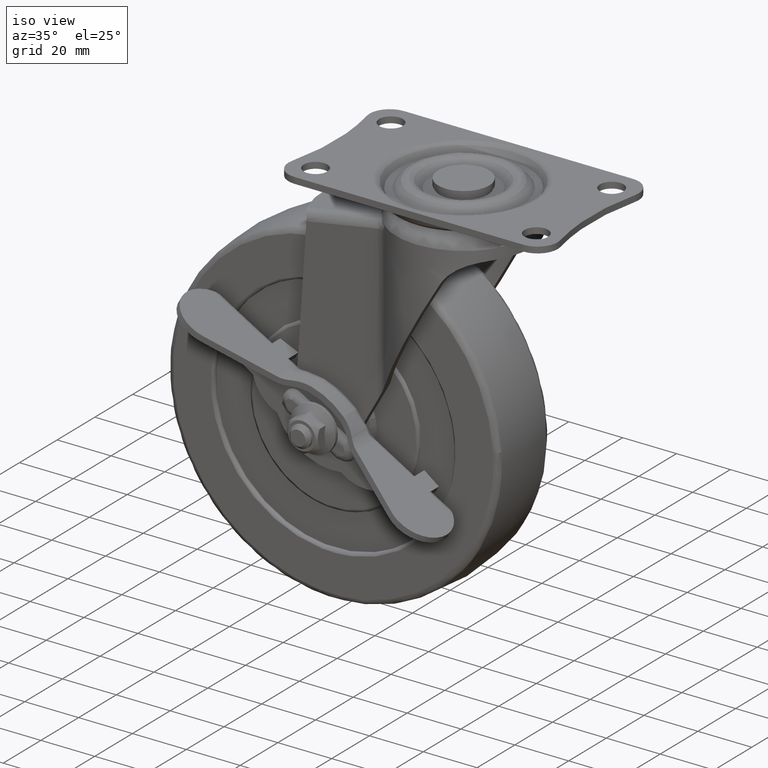
[diagram: clean part render]
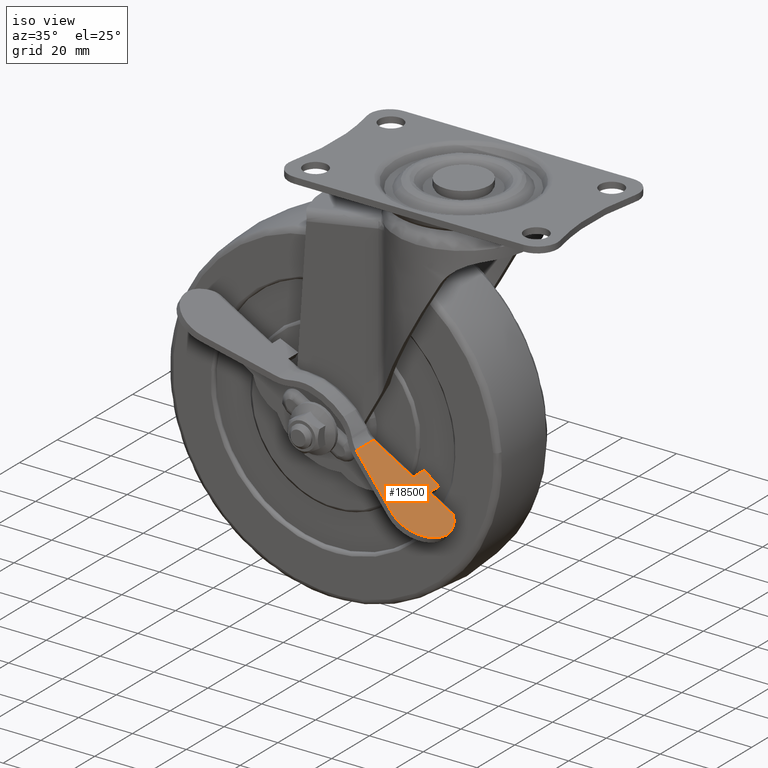
[diagram: same view with one face highlighted and labeled with its STEP entity id]
A machine part, iso view. The second image highlights one B-rep face of the part: STEP entity #18500.
In plain terms, the highlighted face is a freeform B-spline surface patch.
Its self-contained STEP definition (entity closure, byte-faithful):
#16465=CARTESIAN_POINT('',(17.093863742288050,-20.300000000000001,9.949997383010910));
#16466=VERTEX_POINT('',#16465);
#16478=CARTESIAN_POINT('',(33.999969578255147,-20.300000000000001,9.949996660293950));
#16479=VERTEX_POINT('',#16478);
#16480=CARTESIAN_POINT('',(33.999969578255147,-20.300000000000001,9.949996660293950));
#16481=CARTESIAN_POINT('',(17.093863742288050,-20.300000000000001,9.949997383010910));
#16482=QUASI_UNIFORM_CURVE('',1,(#16480,#16481),.UNSPECIFIED.,.F.,.U.);
#16483=EDGE_CURVE('',#16479,#16466,#16482,.T.);
#16909=CARTESIAN_POINT('',(40.999961096512500,-20.300000000000001,9.949995500696689));
#16910=VERTEX_POINT('',#16909);
#16924=CARTESIAN_POINT('',(51.074621003994800,-20.300000000000001,9.949997831451841));
#16925=VERTEX_POINT('',#16924);
#16926=CARTESIAN_POINT('',(51.074621003994800,-20.300000000000001,9.949997831451841));
#16927=CARTESIAN_POINT('',(40.999961096512500,-20.300000000000001,9.949995500696689));
#16928=QUASI_UNIFORM_CURVE('',1,(#16926,#16927),.UNSPECIFIED.,.F.,.U.);
#16929=EDGE_CURVE('',#16925,#16910,#16928,.T.);
#17049=CARTESIAN_POINT('',(40.999961096512500,-15.300004000000049,9.949995500696641));
#17050=VERTEX_POINT('',#17049);
#17051=CARTESIAN_POINT('',(40.999961096512500,-15.300004000000049,9.949995500696641));
#17052=CARTESIAN_POINT('',(40.999961096512500,-20.300000000000001,9.949995500696689));
#17053=QUASI_UNIFORM_CURVE('',1,(#17051,#17052),.UNSPECIFIED.,.F.,.U.);
#17054=EDGE_CURVE('',#17050,#16910,#17053,.T.);
#17084=CARTESIAN_POINT('',(33.999969578255197,-14.299996000000020,9.949995500696641));
#17085=VERTEX_POINT('',#17084);
#17086=CARTESIAN_POINT('',(33.999969578255197,-14.299996000000020,9.949995500696641));
#17087=CARTESIAN_POINT('',(40.999961096512500,-15.300004000000049,9.949995500696641));
#17088=QUASI_UNIFORM_CURVE('',1,(#17086,#17087),.UNSPECIFIED.,.F.,.U.);
#17089=EDGE_CURVE('',#17085,#17050,#17088,.T.);
#17112=CARTESIAN_POINT('',(33.999969578255147,-20.300000000000001,9.949996660293950));
#17113=CARTESIAN_POINT('',(33.999969578255197,-14.299996000000020,9.949995500696641));
#17114=QUASI_UNIFORM_CURVE('',1,(#17112,#17113),.UNSPECIFIED.,.F.,.U.);
#17115=EDGE_CURVE('',#16479,#17085,#17114,.T.);
#17489=CARTESIAN_POINT('',(55.749932160381597,-29.254187733654451,9.949998152133601));
#17490=VERTEX_POINT('',#17489);
#17491=CARTESIAN_POINT('',(51.074621003994800,-20.300000000000001,9.949997831451841));
#17492=CARTESIAN_POINT('',(51.745562361556253,-20.771288424776021,9.949997877471976));
#17493=CARTESIAN_POINT('',(52.733983182447901,-21.646246041638090,9.949997945268251));
#17494=CARTESIAN_POINT('',(54.022755741198139,-23.281131944657950,9.949998033665647));
#17495=CARTESIAN_POINT('',(54.990820542560222,-25.069412733797719,9.949998100065768));
#17496=CARTESIAN_POINT('',(55.613835903820629,-27.177625648865419,9.949998142798565));
#17497=CARTESIAN_POINT('',(55.747259147224611,-28.598266117372599,9.949998151950297));
#17498=CARTESIAN_POINT('',(55.749932160381597,-29.254187733654451,9.949998152133601));
#17499=B_SPLINE_CURVE_WITH_KNOTS('',3,(#17491,#17492,#17493,#17494,#17495,#17496,#17497,#17498),.UNSPECIFIED.,.F.,.U.,(4,1,1,1,1,4),(0.000000117004477,2.459746131111160,3.935600371600325,6.231322207884728,8.527128949829960,10.494926849040960),.UNSPECIFIED.);
#17500=EDGE_CURVE('',#16925,#17490,#17499,.T.);
#17548=CARTESIAN_POINT('',(55.749932160381597,-29.345700072447901,9.949998152133489));
#17549=VERTEX_POINT('',#17548);
#17550=CARTESIAN_POINT('',(40.453927803311949,-39.426237043222763,9.949997397649010));
#17551=VERTEX_POINT('',#17550);
#17552=CARTESIAN_POINT('',(55.749932160381597,-29.345700072447901,9.949998152133489));
#17553=CARTESIAN_POINT('',(55.746747124988097,-30.134885039517972,9.949998138530299));
#17554=CARTESIAN_POINT('',(55.563224595839479,-31.768856907550251,9.949998103630342));
#17555=CARTESIAN_POINT('',(54.687378171887467,-34.288132580834812,9.949998027251629));
#17556=CARTESIAN_POINT('',(53.329088743594738,-36.323823387024532,9.949997940768951));
#17557=CARTESIAN_POINT('',(51.619463834904877,-37.971870946173901,9.949997847534283));
#17558=CARTESIAN_POINT('',(49.725943158839272,-39.220078137000847,9.949997754129701));
#17559=CARTESIAN_POINT('',(47.593368678365991,-40.003452604260268,9.949997659566206));
#17560=CARTESIAN_POINT('',(45.357896114049851,-40.346338362158903,9.949997568610469));
#17561=CARTESIAN_POINT('',(43.034485030939862,-40.271411301486268,9.949997481444912));
#17562=CARTESIAN_POINT('',(41.336015614478569,-39.800770402818252,9.949997424829251));
#17563=CARTESIAN_POINT('',(40.453927803311949,-39.426237043222763,9.949997397649010));
#17564=B_SPLINE_CURVE_WITH_KNOTS('',3,(#17552,#17553,#17554,#17555,#17556,#17557,#17558,#17559,#17560,#17561,#17562,#17563),.UNSPECIFIED.,.F.,.U.,(4,1,1,1,1,1,1,1,1,4),(0.000000398444090,2.367588290733231,4.904333126109155,7.948484226606915,9.639665062758176,12.007093624407521,14.713020212717160,16.404190121747419,18.771865785468481,21.646762983433639),.UNSPECIFIED.);
#17565=EDGE_CURVE('',#17549,#17551,#17564,.T.);
#17902=CARTESIAN_POINT('',(17.093863742288349,-29.515555108079450,9.949996301835240));
#17903=VERTEX_POINT('',#17902);
#17904=CARTESIAN_POINT('',(40.453927803311949,-39.426237043222763,9.949997397649010));
#17905=CARTESIAN_POINT('',(17.093863742288349,-29.515555108079450,9.949996301835240));
#17906=QUASI_UNIFORM_CURVE('',1,(#17904,#17905),.UNSPECIFIED.,.F.,.U.);
#17907=EDGE_CURVE('',#17551,#17903,#17906,.T.);
#18471=CARTESIAN_POINT('',(55.749932160381597,-29.254187733654451,9.949998152133601));
#18472=CARTESIAN_POINT('',(55.749932160381597,-29.345700072447901,9.949998152133489));
#18473=QUASI_UNIFORM_CURVE('',1,(#18471,#18472),.UNSPECIFIED.,.F.,.U.);
#18474=EDGE_CURVE('',#17490,#17549,#18473,.T.);
#18479=CARTESIAN_POINT('',(57.680801839084751,-41.598186767592722,9.949998284572711));
#18480=CARTESIAN_POINT('',(15.162995100421581,-41.598186767592722,9.949995368257534));
#18481=CARTESIAN_POINT('',(57.680801839084751,-13.001321524802551,9.949998284572711));
#18482=CARTESIAN_POINT('',(15.162995100421581,-13.001321524802551,9.949995368257534));
#18483=B_SPLINE_SURFACE_WITH_KNOTS('',1,1,((#18479,#18481),(#18480,#18482)),.UNSPECIFIED.,.F.,.F.,.U.,(2,2),(2,2),(0.0,42.517806738663261),(0.0,28.596865242790180),.UNSPECIFIED.);
#18484=ORIENTED_EDGE('',*,*,#17500,.F.);
#18485=ORIENTED_EDGE('',*,*,#16929,.T.);
#18486=ORIENTED_EDGE('',*,*,#17054,.F.);
#18487=ORIENTED_EDGE('',*,*,#17089,.F.);
#18488=ORIENTED_EDGE('',*,*,#17115,.F.);
#18489=ORIENTED_EDGE('',*,*,#16483,.T.);
#18490=CARTESIAN_POINT('',(17.093863742288050,-20.300000000000001,9.949997383010910));
#18491=CARTESIAN_POINT('',(17.093863742288349,-29.515555108079450,9.949996301835240));
#18492=QUASI_UNIFORM_CURVE('',1,(#18490,#18491),.UNSPECIFIED.,.F.,.U.);
#18493=EDGE_CURVE('',#16466,#17903,#18492,.T.);
#18494=ORIENTED_EDGE('',*,*,#18493,.T.);
#18495=ORIENTED_EDGE('',*,*,#17907,.F.);
#18496=ORIENTED_EDGE('',*,*,#17565,.F.);
#18497=ORIENTED_EDGE('',*,*,#18474,.F.);
#18498=EDGE_LOOP('',(#18484,#18485,#18486,#18487,#18488,#18489,#18494,#18495,#18496,#18497));
#18499=FACE_OUTER_BOUND('',#18498,.T.);
#18500=ADVANCED_FACE('',(#18499),#18483,.F.);